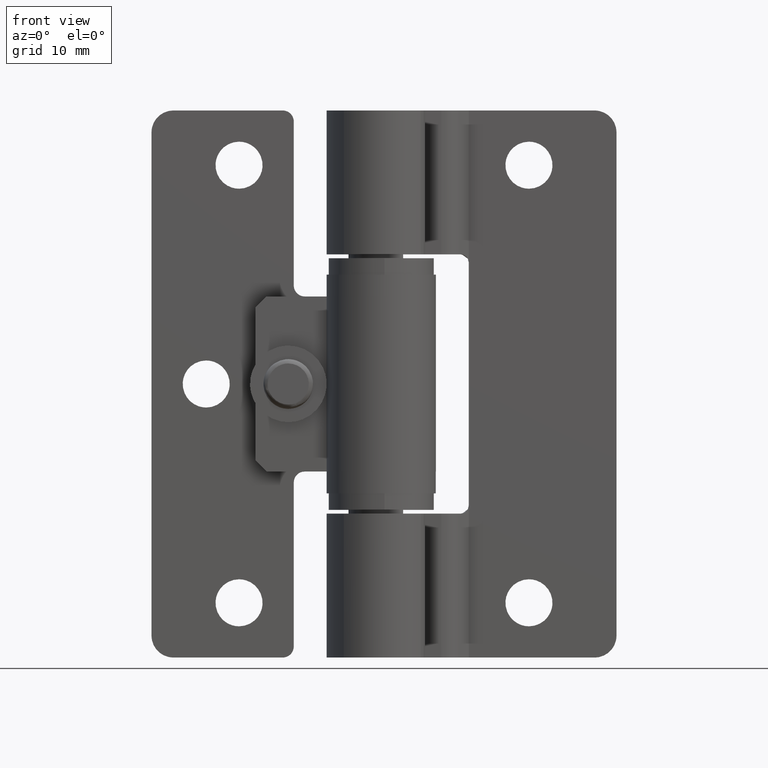
[diagram: clean part render]
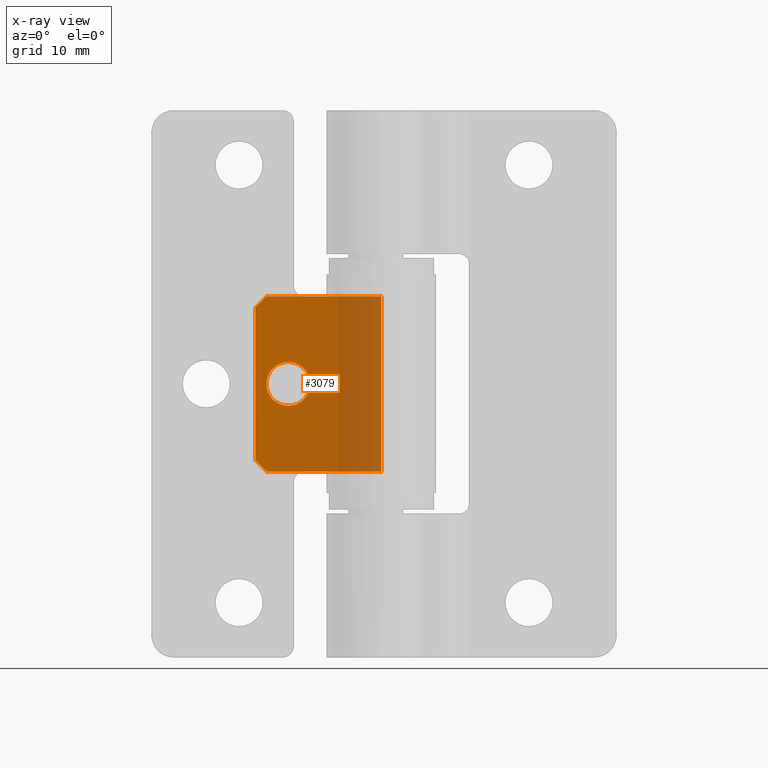
[diagram: x-ray — body ghosted, one internal face saturated and labeled with its STEP entity id]
A machine part, front view, then the same camera in x-ray: the body is ghosted and one INTERNAL B-rep face — a face not visible from any outside direction — is saturated and labeled: STEP entity #3079.
In plain terms, the highlighted face is a freeform B-spline surface patch.
Its self-contained STEP definition (entity closure, byte-faithful):
#2270=CARTESIAN_POINT('',(-6.500076153873277,4.0,25.017453071205239));
#2271=VERTEX_POINT('',#2270);
#2277=CARTESIAN_POINT('',(-8.499999999999799,4.0,23.0));
#2278=VERTEX_POINT('',#2277);
#2279=CARTESIAN_POINT('',(-6.500076153873277,4.000000000000000,25.017453071205246));
#2280=CARTESIAN_POINT('',(-6.499999999999799,4.000000000000000,25.008726701849913));
#2281=CARTESIAN_POINT('',(-6.499999999999799,4.0,25.0));
#2282=CARTESIAN_POINT('',(-6.499999999999801,4.000000000000000,22.999999999999993));
#2283=CARTESIAN_POINT('',(-8.499999999999799,4.0,23.0));
#2291=(BOUNDED_CURVE()B_SPLINE_CURVE(2,(#2279,#2280,#2281,#2282,#2283),.UNSPECIFIED.,.F.,.U.)B_SPLINE_CURVE_WITH_KNOTS((3,2,3),(0.248460105628287,0.250000000000000,0.500000000000000),.UNSPECIFIED.)CURVE()GEOMETRIC_REPRESENTATION_ITEM()RATIONAL_B_SPLINE_CURVE((0.996414028015411,0.998195901523345,1.0,0.707106781186548,1.0))REPRESENTATION_ITEM(''));
#2292=EDGE_CURVE('',#2271,#2278,#2291,.T.);
#2294=CARTESIAN_POINT('',(-10.484532427633919,4.0,24.751743995704789));
#2295=VERTEX_POINT('',#2294);
#2296=CARTESIAN_POINT('',(-8.499999999999799,4.0,23.0));
#2297=CARTESIAN_POINT('',(-10.265397200057214,4.0,23.0));
#2298=CARTESIAN_POINT('',(-10.484532427633921,4.000000000000001,24.751743995704793));
#2306=(BOUNDED_CURVE()B_SPLINE_CURVE(2,(#2296,#2297,#2298),.UNSPECIFIED.,.F.,.U.)B_SPLINE_CURVE_WITH_KNOTS((3,3),(0.500000000000000,0.728526071006261),.UNSPECIFIED.)CURVE()GEOMETRIC_REPRESENTATION_ITEM()RATIONAL_B_SPLINE_CURVE((1.0,0.732265053920739,0.954005430230011))REPRESENTATION_ITEM(''));
#2307=EDGE_CURVE('',#2278,#2295,#2306,.T.);
#2357=CARTESIAN_POINT('',(-8.499999999999799,4.0,27.0));
#2358=VERTEX_POINT('',#2357);
#2359=CARTESIAN_POINT('',(-10.484532427633924,4.000000000000000,24.751743995704796));
#2360=CARTESIAN_POINT('',(-10.499999999999797,4.000000000000000,24.875390144795876));
#2361=CARTESIAN_POINT('',(-10.499999999999799,4.0,25.0));
#2362=CARTESIAN_POINT('',(-10.499999999999799,4.000000000000000,27.000000000000011));
#2363=CARTESIAN_POINT('',(-8.499999999999799,4.0,27.0));
#2371=(BOUNDED_CURVE()B_SPLINE_CURVE(2,(#2359,#2360,#2361,#2362,#2363),.UNSPECIFIED.,.F.,.U.)B_SPLINE_CURVE_WITH_KNOTS((3,2,3),(0.728526071006261,0.750000000000000,1.0),.UNSPECIFIED.)CURVE()GEOMETRIC_REPRESENTATION_ITEM()RATIONAL_B_SPLINE_CURVE((0.954005430230012,0.974841727265809,1.0,0.707106781186548,1.0))REPRESENTATION_ITEM(''));
#2372=EDGE_CURVE('',#2295,#2358,#2371,.T.);
#2374=CARTESIAN_POINT('',(-8.499999999999799,4.0,27.0));
#2375=CARTESIAN_POINT('',(-6.517377579223238,4.000000000000001,27.000000000000011));
#2376=CARTESIAN_POINT('',(-6.500076153873277,4.000000000000000,25.017453071205246));
#2384=(BOUNDED_CURVE()B_SPLINE_CURVE(2,(#2374,#2375,#2376),.UNSPECIFIED.,.F.,.U.)B_SPLINE_CURVE_WITH_KNOTS((3,3),(0.0,0.248460105628287),.UNSPECIFIED.)CURVE()GEOMETRIC_REPRESENTATION_ITEM()RATIONAL_B_SPLINE_CURVE((1.0,0.708910879663203,0.996414028015412))REPRESENTATION_ITEM(''));
#2385=EDGE_CURVE('',#2358,#2271,#2384,.T.);
#2595=CARTESIAN_POINT('',(-11.499999999999821,4.0,32.0));
#2596=VERTEX_POINT('',#2595);
#2597=CARTESIAN_POINT('',(-10.499999999999840,4.0,33.0));
#2598=VERTEX_POINT('',#2597);
#2599=CARTESIAN_POINT('',(-11.499999999999821,4.0,32.0));
#2600=CARTESIAN_POINT('',(-10.499999999999840,4.0,33.0));
#2601=QUASI_UNIFORM_CURVE('',1,(#2599,#2600),.UNSPECIFIED.,.F.,.U.);
#2602=EDGE_CURVE('',#2596,#2598,#2601,.T.);
#2703=CARTESIAN_POINT('',(-10.500000000000000,4.0,17.0));
#2704=VERTEX_POINT('',#2703);
#2705=CARTESIAN_POINT('',(-11.499999999999860,4.0,18.0));
#2706=VERTEX_POINT('',#2705);
#2707=CARTESIAN_POINT('',(-10.500000000000000,4.0,17.0));
#2708=CARTESIAN_POINT('',(-11.499999999999860,4.0,18.0));
#2709=QUASI_UNIFORM_CURVE('',1,(#2707,#2708),.UNSPECIFIED.,.F.,.U.);
#2710=EDGE_CURVE('',#2704,#2706,#2709,.T.);
#2754=CARTESIAN_POINT('',(-3.307792E-015,4.0,33.0));
#2755=VERTEX_POINT('',#2754);
#2775=CARTESIAN_POINT('',(-3.307792E-015,4.0,33.0));
#2776=CARTESIAN_POINT('',(-10.499999999999840,4.0,33.0));
#2777=QUASI_UNIFORM_CURVE('',1,(#2775,#2776),.UNSPECIFIED.,.F.,.U.);
#2778=EDGE_CURVE('',#2755,#2598,#2777,.T.);
#2823=CARTESIAN_POINT('',(-3.307792E-015,4.0,17.0));
#2824=VERTEX_POINT('',#2823);
#2825=CARTESIAN_POINT('',(-3.307792E-015,4.0,17.0));
#2826=CARTESIAN_POINT('',(-10.500000000000000,4.0,17.0));
#2827=QUASI_UNIFORM_CURVE('',1,(#2825,#2826),.UNSPECIFIED.,.F.,.U.);
#2828=EDGE_CURVE('',#2824,#2704,#2827,.T.);
#2915=CARTESIAN_POINT('',(-3.307792E-015,4.0,17.0));
#2916=CARTESIAN_POINT('',(-3.307792E-015,4.0,33.0));
#2917=QUASI_UNIFORM_CURVE('',1,(#2915,#2916),.UNSPECIFIED.,.F.,.U.);
#2918=EDGE_CURVE('',#2824,#2755,#2917,.T.);
#3049=CARTESIAN_POINT('',(-11.499999999999860,4.0,18.0));
#3050=CARTESIAN_POINT('',(-11.499999999999821,4.0,32.0));
#3051=QUASI_UNIFORM_CURVE('',1,(#3049,#3050),.UNSPECIFIED.,.F.,.U.);
#3052=EDGE_CURVE('',#2706,#2596,#3051,.T.);
#3060=CARTESIAN_POINT('',(-12.074424977710621,4.0,16.200800031011109));
#3061=CARTESIAN_POINT('',(-12.074424977710621,4.0,33.799200398142339));
#3062=CARTESIAN_POINT('',(0.574425286164794,4.0,16.200800031011109));
#3063=CARTESIAN_POINT('',(0.574425286164794,4.0,33.799200398142339));
#3064=B_SPLINE_SURFACE_WITH_KNOTS('',1,1,((#3060,#3062),(#3061,#3063)),.UNSPECIFIED.,.F.,.F.,.U.,(2,2),(2,2),(0.0,17.598400367131230),(0.0,12.648850263875421),.UNSPECIFIED.);
#3065=ORIENTED_EDGE('',*,*,#2828,.T.);
#3066=ORIENTED_EDGE('',*,*,#2710,.T.);
#3067=ORIENTED_EDGE('',*,*,#3052,.T.);
#3068=ORIENTED_EDGE('',*,*,#2602,.T.);
#3069=ORIENTED_EDGE('',*,*,#2778,.F.);
#3070=ORIENTED_EDGE('',*,*,#2918,.F.);
#3071=EDGE_LOOP('',(#3065,#3066,#3067,#3068,#3069,#3070));
#3072=FACE_OUTER_BOUND('',#3071,.T.);
#3073=ORIENTED_EDGE('',*,*,#2385,.F.);
#3074=ORIENTED_EDGE('',*,*,#2372,.F.);
#3075=ORIENTED_EDGE('',*,*,#2307,.F.);
#3076=ORIENTED_EDGE('',*,*,#2292,.F.);
#3077=EDGE_LOOP('',(#3073,#3074,#3075,#3076));
#3078=FACE_BOUND('',#3077,.T.);
#3079=ADVANCED_FACE('',(#3072,#3078),#3064,.T.);